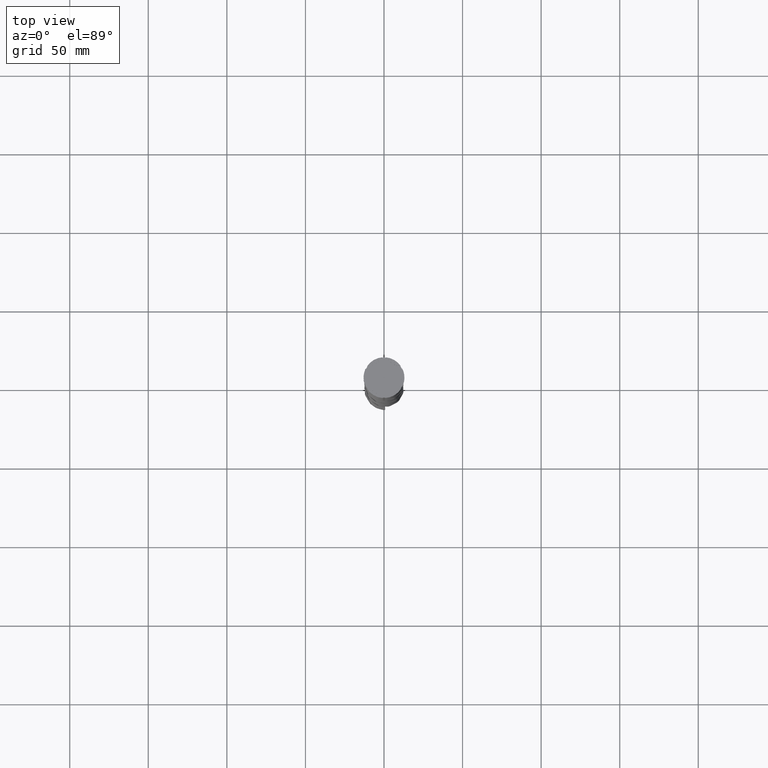
[diagram: clean part render]
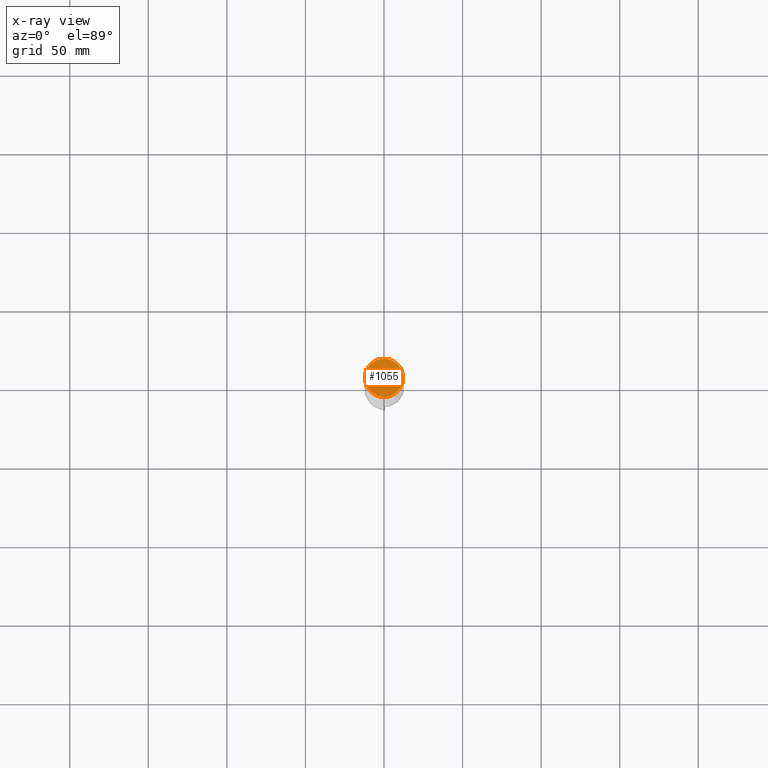
[diagram: x-ray — body ghosted, one internal face saturated and labeled with its STEP entity id]
A machine part, top view, then the same camera in x-ray: the body is ghosted and one INTERNAL B-rep face — a face not visible from any outside direction — is saturated and labeled: STEP entity #1055.
In plain terms, the highlighted planar face has unit normal (0, 0, -1).
Its self-contained STEP definition (entity closure, byte-faithful):
#25 = AXIS2_PLACEMENT_3D ( 'NONE', #1650, #508, #160 ) ;
#57 = CIRCLE ( 'NONE', #656, 12.20000000000000639 ) ;
#160 = DIRECTION ( 'NONE',  ( -1.000000000000000000, 0.000000000000000000, -0.000000000000000000 ) ) ;
#228 = FACE_OUTER_BOUND ( 'NONE', #942, .T. ) ;
#324 = AXIS2_PLACEMENT_3D ( 'NONE', #2291, #3746, #899 ) ;
#508 = DIRECTION ( 'NONE',  ( 0.000000000000000000, 0.000000000000000000, -1.000000000000000000 ) ) ;
#656 = AXIS2_PLACEMENT_3D ( 'NONE', #3681, #2652, #3617 ) ;
#856 = PLANE ( 'NONE',  #25 ) ;
#899 = DIRECTION ( 'NONE',  ( -1.000000000000000000, 0.000000000000000000, 0.000000000000000000 ) ) ;
#942 = EDGE_LOOP ( 'NONE', ( #1632, #1433 ) ) ;
#972 = EDGE_CURVE ( 'NONE', #1921, #2110, #4607, .T. ) ;
#1055 = ADVANCED_FACE ( 'NONE', ( #228 ), #856, .F. ) ;
#1368 = CARTESIAN_POINT ( 'NONE',  ( -12.20000000000000639, 0.000000000000000000, -12.00000000000000000 ) ) ;
#1433 = ORIENTED_EDGE ( 'NONE', *, *, #4541, .T. ) ;
#1632 = ORIENTED_EDGE ( 'NONE', *, *, #972, .T. ) ;
#1650 = CARTESIAN_POINT ( 'NONE',  ( 0.000000000000000000, 0.000000000000000000, -12.00000000000000000 ) ) ;
#1921 = VERTEX_POINT ( 'NONE', #1368 ) ;
#2029 = CARTESIAN_POINT ( 'NONE',  ( 12.20000000000000639, 1.512438796946981880E-15, -12.00000000000000000 ) ) ;
#2110 = VERTEX_POINT ( 'NONE', #2029 ) ;
#2291 = CARTESIAN_POINT ( 'NONE',  ( 0.000000000000000000, 0.000000000000000000, -12.00000000000000000 ) ) ;
#2652 = DIRECTION ( 'NONE',  ( -0.000000000000000000, -0.000000000000000000, 1.000000000000000000 ) ) ;
#3617 = DIRECTION ( 'NONE',  ( -1.000000000000000000, 0.000000000000000000, 0.000000000000000000 ) ) ;
#3681 = CARTESIAN_POINT ( 'NONE',  ( 0.000000000000000000, 0.000000000000000000, -12.00000000000000000 ) ) ;
#3746 = DIRECTION ( 'NONE',  ( -0.000000000000000000, -0.000000000000000000, 1.000000000000000000 ) ) ;
#4541 = EDGE_CURVE ( 'NONE', #2110, #1921, #57, .T. ) ;
#4607 = CIRCLE ( 'NONE', #324, 12.20000000000000639 ) ;